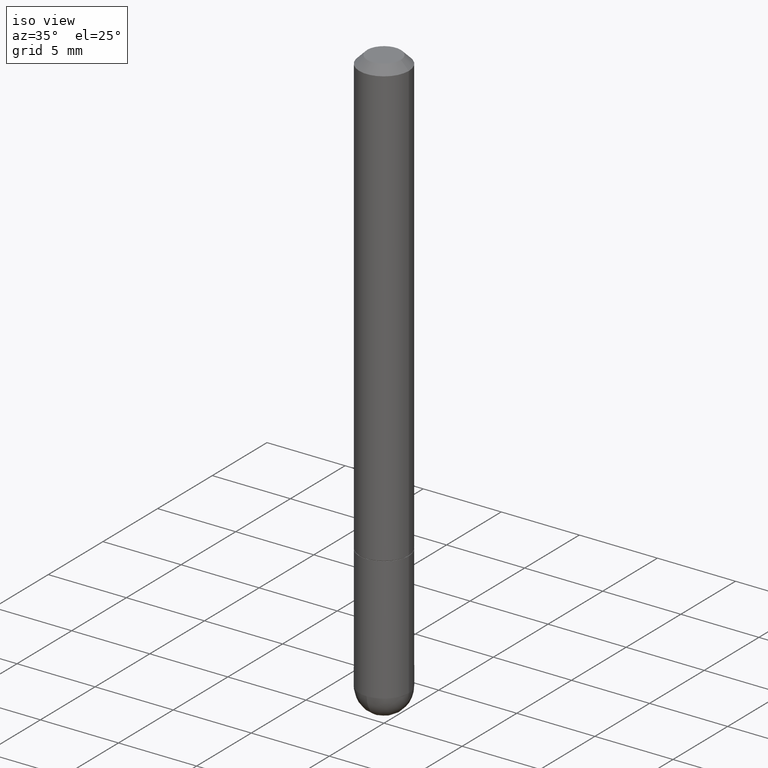
[diagram: clean part render]
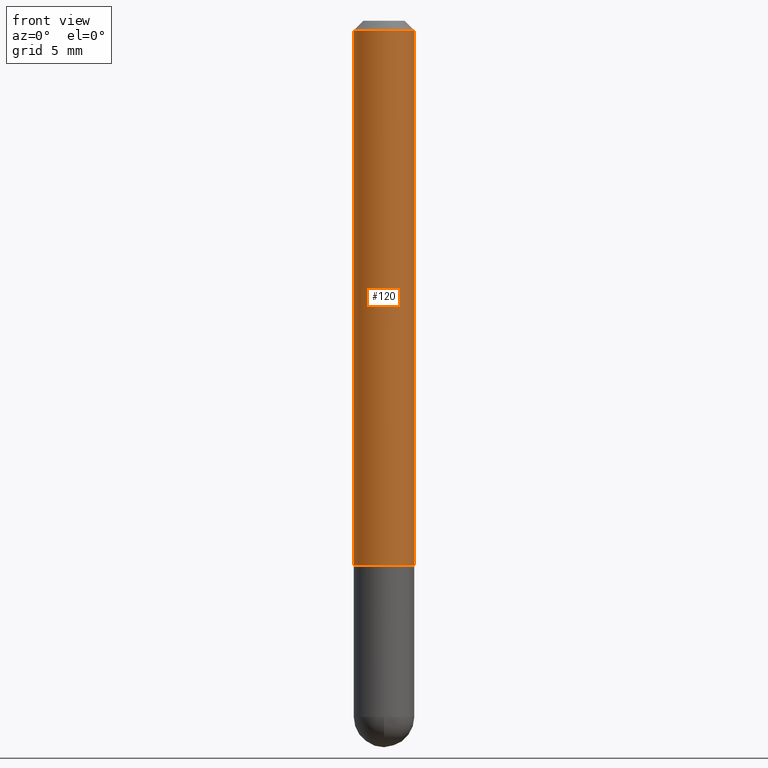
[diagram: tour spotlight — one face highlighted and labeled with its STEP entity id]
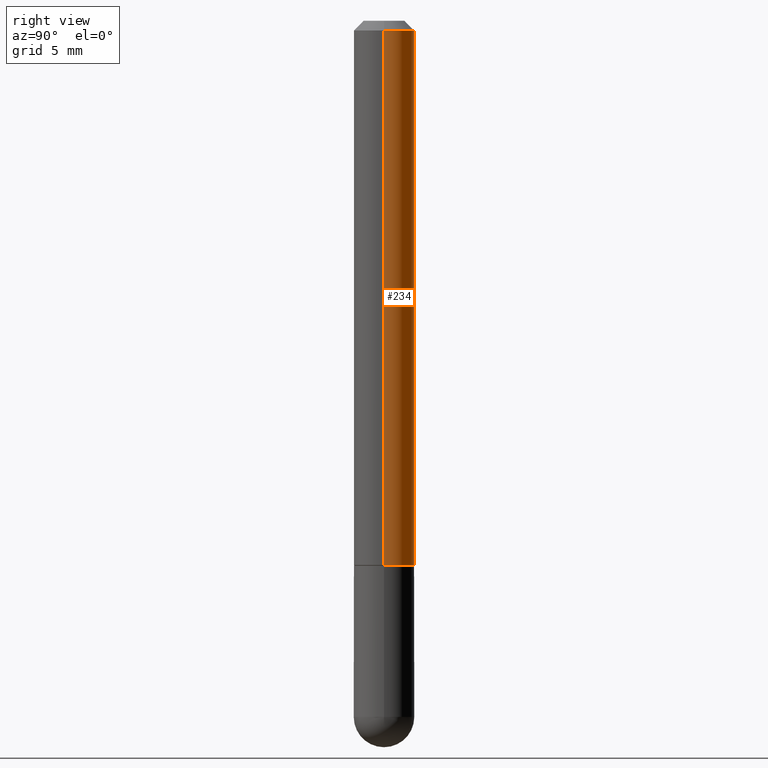
[diagram: tour spotlight — one face highlighted and labeled with its STEP entity id]
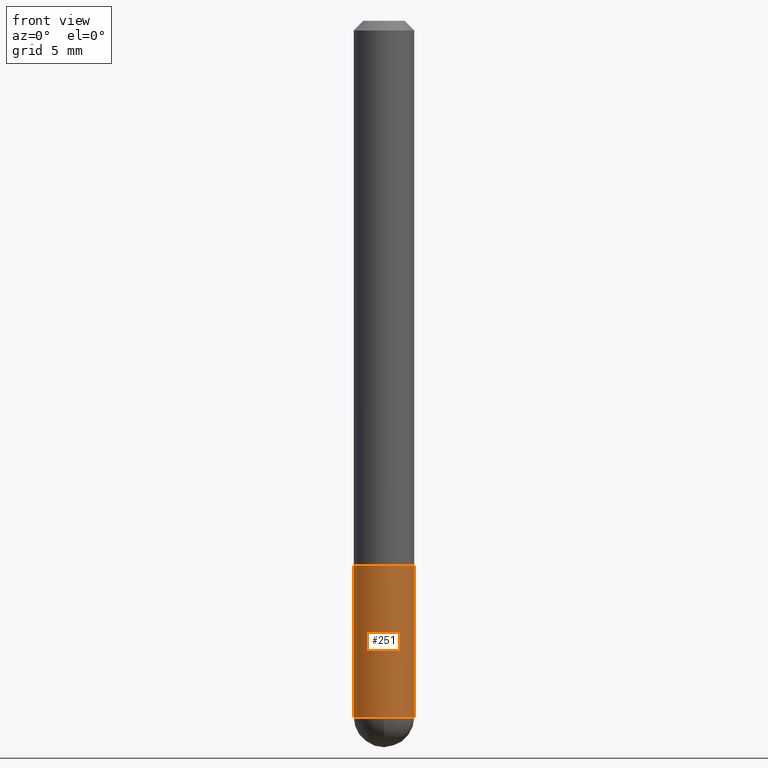
[diagram: tour spotlight — one face highlighted and labeled with its STEP entity id]
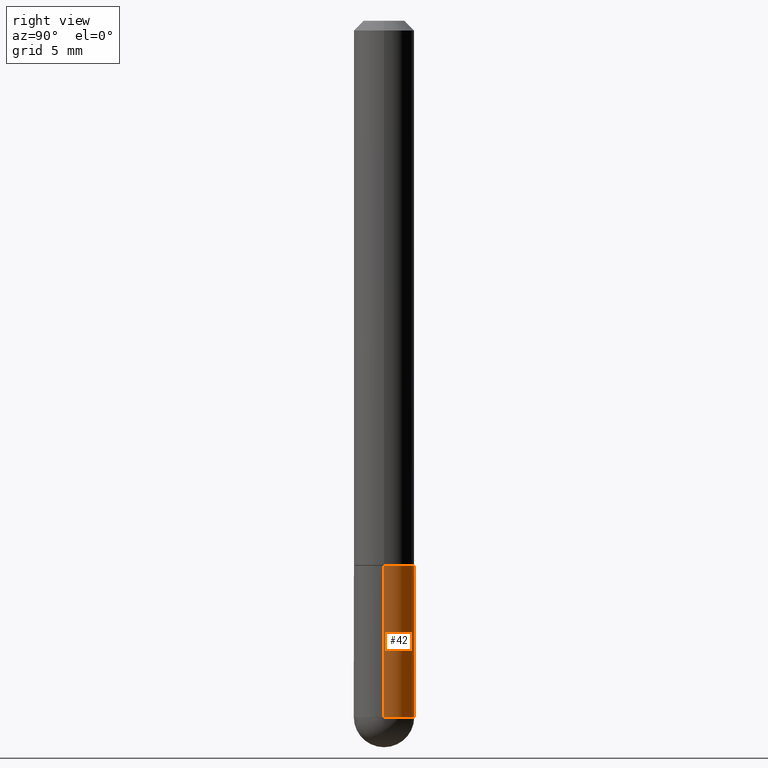
[diagram: tour spotlight — one face highlighted and labeled with its STEP entity id]
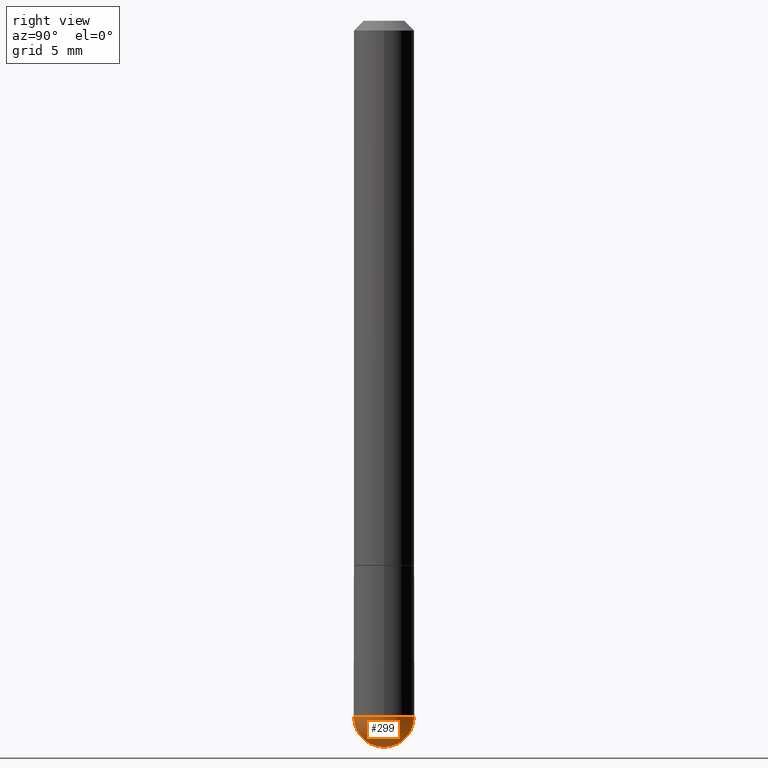
[diagram: tour spotlight — one face highlighted and labeled with its STEP entity id]
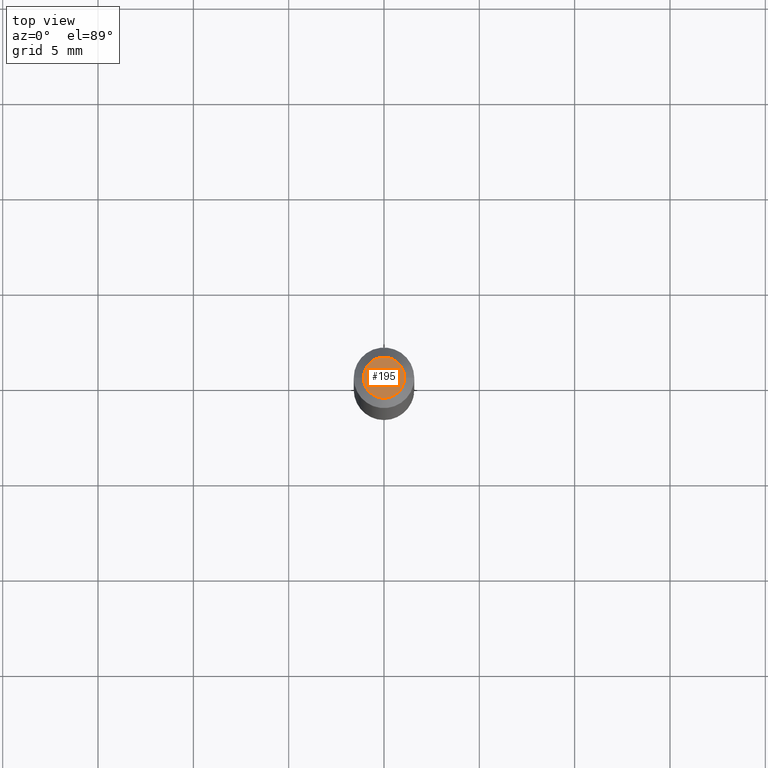
[diagram: tour spotlight — one face highlighted and labeled with its STEP entity id]
A machine part: a face-by-face anatomy tour. The part has 13 B-rep faces; the first image is the clean iso view, then the 6 largest visible faces are spotlighted one at a time (largest first), each with its STEP entity span.

Face 1 — front view, entity #120. In plain terms, the highlighted cylindrical surface (edge-blend (fillet) strip) has radius 1.5875 mm, axis along (-0, 0, 1).
Definition (entity closure, byte-faithful):
#12 = DIRECTION ( 'NONE',  ( -2.445468806185136877E-29, 3.491481338843145188E-15, 1.000000000000000000 ) ) ;
#26 = CARTESIAN_POINT ( 'NONE',  ( 0.06250000000000001388, -4.986107516375840208E-16, -0.02000000000000006981 ) ) ;
#31 = VERTEX_POINT ( 'NONE', #274 ) ;
#45 = CARTESIAN_POINT ( 'NONE',  ( 0.000000000000000000, 0.000000000000000000, 0.000000000000000000 ) ) ;
#47 = EDGE_CURVE ( 'NONE', #101, #275, #158, .T. ) ;
#80 = CARTESIAN_POINT ( 'NONE',  ( 4.890937612370289799E-31, -6.982962677686315028E-17, -0.02000000000000006981 ) ) ;
#92 = DIRECTION ( 'NONE',  ( 1.000000000000000000, -6.982962677686269077E-15, 0.000000000000000000 ) ) ;
#96 = ORIENTED_EDGE ( 'NONE', *, *, #208, .F. ) ;
#101 = VERTEX_POINT ( 'NONE', #238 ) ;
#115 = DIRECTION ( 'NONE',  ( -2.445468806185136597E-29, 3.491481338843145583E-15, 1.000000000000000000 ) ) ;
#120 = ADVANCED_FACE ( 'NONE', ( #272 ), #398, .T. ) ;
#126 = AXIS2_PLACEMENT_3D ( 'NONE', #252, #309, #92 ) ;
#140 = VERTEX_POINT ( 'NONE', #190 ) ;
#147 = EDGE_CURVE ( 'NONE', #140, #31, #194, .T. ) ;
#154 = AXIS2_PLACEMENT_3D ( 'NONE', #45, #115, #332 ) ;
#158 = CIRCLE ( 'NONE', #303, 0.06250000000000001388 ) ;
#159 = VECTOR ( 'NONE', #235, 39.37007874015748143 ) ;
#190 = CARTESIAN_POINT ( 'NONE',  ( -0.06250000000000015266, -1.553038115968214380E-15, -1.124000000000000332 ) ) ;
#194 = CIRCLE ( 'NONE', #126, 0.06250000000000015266 ) ;
#203 = ORIENTED_EDGE ( 'NONE', *, *, #393, .T. ) ;
#208 = EDGE_CURVE ( 'NONE', #140, #101, #287, .T. ) ;
#230 = CARTESIAN_POINT ( 'NONE',  ( -0.06250000000000008327, 4.440892098500632078E-16, -3.074334431409319967E-30 ) ) ;
#235 = DIRECTION ( 'NONE',  ( -2.445468806185136877E-29, 3.491481338843145188E-15, 1.000000000000000000 ) ) ;
#238 = CARTESIAN_POINT ( 'NONE',  ( -0.06250000000000001388, 3.666055405785286670E-16, -0.02000000000000006981 ) ) ;
#252 = CARTESIAN_POINT ( 'NONE',  ( 2.748706938152094189E-29, -3.924425024859696217E-15, -1.124000000000000332 ) ) ;
#265 = ORIENTED_EDGE ( 'NONE', *, *, #47, .F. ) ;
#272 = FACE_OUTER_BOUND ( 'NONE', #349, .T. ) ;
#274 = CARTESIAN_POINT ( 'NONE',  ( 0.06250000000000015266, -4.360860192215089464E-15, -1.124000000000000332 ) ) ;
#275 = VERTEX_POINT ( 'NONE', #26 ) ;
#287 = LINE ( 'NONE', #230, #159 ) ;
#295 = CARTESIAN_POINT ( 'NONE',  ( 0.06250000000000008327, -4.364351673553922611E-16, 3.047610484872464074E-30 ) ) ;
#303 = AXIS2_PLACEMENT_3D ( 'NONE', #80, #403, #359 ) ;
#308 = VECTOR ( 'NONE', #12, 39.37007874015748143 ) ;
#309 = DIRECTION ( 'NONE',  ( -2.445468806185136597E-29, 3.491481338843145583E-15, 1.000000000000000000 ) ) ;
#332 = DIRECTION ( 'NONE',  ( 1.000000000000000000, -6.982962677686266711E-15, 4.876176775795935793E-29 ) ) ;
#348 = LINE ( 'NONE', #295, #308 ) ;
#349 = EDGE_LOOP ( 'NONE', ( #96, #354, #203, #265 ) ) ;
#354 = ORIENTED_EDGE ( 'NONE', *, *, #147, .T. ) ;
#359 = DIRECTION ( 'NONE',  ( 1.000000000000000000, -6.982962677686267499E-15, 0.000000000000000000 ) ) ;
#393 = EDGE_CURVE ( 'NONE', #31, #275, #348, .T. ) ;
#398 = CYLINDRICAL_SURFACE ( 'NONE', #154, 0.06250000000000008327 ) ;
#403 = DIRECTION ( 'NONE',  ( -2.445468806185136597E-29, 3.491481338843145583E-15, 1.000000000000000000 ) ) ;

Face 2 — right view, entity #234. In plain terms, the highlighted cylindrical surface (edge-blend (fillet) strip) has radius 1.5875 mm, axis along (-0, 0, 1).
Definition (entity closure, byte-faithful):
#12 = DIRECTION ( 'NONE',  ( -2.445468806185136877E-29, 3.491481338843145188E-15, 1.000000000000000000 ) ) ;
#13 = DIRECTION ( 'NONE',  ( 1.000000000000000000, -6.982962677686266711E-15, 4.876176775795935793E-29 ) ) ;
#26 = CARTESIAN_POINT ( 'NONE',  ( 0.06250000000000001388, -4.986107516375840208E-16, -0.02000000000000006981 ) ) ;
#31 = VERTEX_POINT ( 'NONE', #274 ) ;
#33 = ORIENTED_EDGE ( 'NONE', *, *, #291, .T. ) ;
#36 = FACE_OUTER_BOUND ( 'NONE', #112, .T. ) ;
#49 = CIRCLE ( 'NONE', #323, 0.06250000000000015266 ) ;
#62 = ORIENTED_EDGE ( 'NONE', *, *, #208, .T. ) ;
#101 = VERTEX_POINT ( 'NONE', #238 ) ;
#107 = CYLINDRICAL_SURFACE ( 'NONE', #244, 0.06250000000000008327 ) ;
#112 = EDGE_LOOP ( 'NONE', ( #33, #62, #130, #286 ) ) ;
#127 = EDGE_CURVE ( 'NONE', #275, #101, #179, .T. ) ;
#130 = ORIENTED_EDGE ( 'NONE', *, *, #127, .F. ) ;
#140 = VERTEX_POINT ( 'NONE', #190 ) ;
#156 = DIRECTION ( 'NONE',  ( 1.000000000000000000, -6.982962677686267499E-15, 0.000000000000000000 ) ) ;
#159 = VECTOR ( 'NONE', #235, 39.37007874015748143 ) ;
#179 = CIRCLE ( 'NONE', #406, 0.06250000000000001388 ) ;
#186 = DIRECTION ( 'NONE',  ( -2.445468806185136597E-29, 3.491481338843145583E-15, 1.000000000000000000 ) ) ;
#190 = CARTESIAN_POINT ( 'NONE',  ( -0.06250000000000015266, -1.553038115968214380E-15, -1.124000000000000332 ) ) ;
#208 = EDGE_CURVE ( 'NONE', #140, #101, #287, .T. ) ;
#230 = CARTESIAN_POINT ( 'NONE',  ( -0.06250000000000008327, 4.440892098500632078E-16, -3.074334431409319967E-30 ) ) ;
#234 = ADVANCED_FACE ( 'NONE', ( #36 ), #107, .T. ) ;
#235 = DIRECTION ( 'NONE',  ( -2.445468806185136877E-29, 3.491481338843145188E-15, 1.000000000000000000 ) ) ;
#238 = CARTESIAN_POINT ( 'NONE',  ( -0.06250000000000001388, 3.666055405785286670E-16, -0.02000000000000006981 ) ) ;
#244 = AXIS2_PLACEMENT_3D ( 'NONE', #310, #389, #13 ) ;
#274 = CARTESIAN_POINT ( 'NONE',  ( 0.06250000000000015266, -4.360860192215089464E-15, -1.124000000000000332 ) ) ;
#275 = VERTEX_POINT ( 'NONE', #26 ) ;
#286 = ORIENTED_EDGE ( 'NONE', *, *, #393, .F. ) ;
#287 = LINE ( 'NONE', #230, #159 ) ;
#291 = EDGE_CURVE ( 'NONE', #31, #140, #49, .T. ) ;
#295 = CARTESIAN_POINT ( 'NONE',  ( 0.06250000000000008327, -4.364351673553922611E-16, 3.047610484872464074E-30 ) ) ;
#308 = VECTOR ( 'NONE', #12, 39.37007874015748143 ) ;
#310 = CARTESIAN_POINT ( 'NONE',  ( 0.000000000000000000, 0.000000000000000000, 0.000000000000000000 ) ) ;
#313 = DIRECTION ( 'NONE',  ( -2.445468806185136597E-29, 3.491481338843145583E-15, 1.000000000000000000 ) ) ;
#323 = AXIS2_PLACEMENT_3D ( 'NONE', #372, #313, #408 ) ;
#348 = LINE ( 'NONE', #295, #308 ) ;
#372 = CARTESIAN_POINT ( 'NONE',  ( 2.748706938152094189E-29, -3.924425024859696217E-15, -1.124000000000000332 ) ) ;
#375 = CARTESIAN_POINT ( 'NONE',  ( 4.890937612370289799E-31, -6.982962677686315028E-17, -0.02000000000000006981 ) ) ;
#389 = DIRECTION ( 'NONE',  ( -2.445468806185136597E-29, 3.491481338843145583E-15, 1.000000000000000000 ) ) ;
#393 = EDGE_CURVE ( 'NONE', #31, #275, #348, .T. ) ;
#406 = AXIS2_PLACEMENT_3D ( 'NONE', #375, #186, #156 ) ;
#408 = DIRECTION ( 'NONE',  ( 1.000000000000000000, -6.982962677686269077E-15, 0.000000000000000000 ) ) ;

Face 3 — front view, entity #251. In plain terms, the highlighted cylindrical surface (edge-blend (fillet) strip) has radius 1.5875 mm, axis along (-0, 0, 1).
Definition (entity closure, byte-faithful):
#10 = CARTESIAN_POINT ( 'NONE',  ( 0.000000000000000000, 0.000000000000000000, 0.000000000000000000 ) ) ;
#16 = DIRECTION ( 'NONE',  ( -2.445468806185136597E-29, 3.491481338843145583E-15, 1.000000000000000000 ) ) ;
#25 = DIRECTION ( 'NONE',  ( -2.445468806185136877E-29, 3.491481338843145188E-15, 1.000000000000000000 ) ) ;
#27 = LINE ( 'NONE', #264, #278 ) ;
#29 = AXIS2_PLACEMENT_3D ( 'NONE', #50, #404, #90 ) ;
#37 = AXIS2_PLACEMENT_3D ( 'NONE', #10, #139, #383 ) ;
#39 = AXIS2_PLACEMENT_3D ( 'NONE', #296, #16, #412 ) ;
#48 = VECTOR ( 'NONE', #25, 39.37007874015748143 ) ;
#50 = CARTESIAN_POINT ( 'NONE',  ( 3.515361408891134418E-29, -5.019004424587023131E-15, -1.437500000000000222 ) ) ;
#65 = FACE_OUTER_BOUND ( 'NONE', #222, .T. ) ;
#69 = ORIENTED_EDGE ( 'NONE', *, *, #181, .T. ) ;
#72 = CARTESIAN_POINT ( 'NONE',  ( 0.06250000000000000000, -4.909895632748173241E-15, -1.437500000000000222 ) ) ;
#74 = VERTEX_POINT ( 'NONE', #138 ) ;
#90 = DIRECTION ( 'NONE',  ( 1.000000000000000000, -6.982962677686262766E-15, 0.000000000000000000 ) ) ;
#102 = EDGE_CURVE ( 'NONE', #259, #352, #268, .T. ) ;
#121 = CIRCLE ( 'NONE', #29, 0.06250000000000000000 ) ;
#123 = LINE ( 'NONE', #250, #48 ) ;
#125 = EDGE_CURVE ( 'NONE', #74, #361, #121, .T. ) ;
#138 = CARTESIAN_POINT ( 'NONE',  ( -0.06250000000000000000, -4.029371255542718167E-15, -1.437500000000000222 ) ) ;
#139 = DIRECTION ( 'NONE',  ( -2.445468806185136597E-29, 3.491481338843145583E-15, 1.000000000000000000 ) ) ;
#153 = CARTESIAN_POINT ( 'NONE',  ( 0.06250000000000000000, -4.364351673553930894E-15, -1.125000000000000222 ) ) ;
#164 = EDGE_CURVE ( 'NONE', #74, #259, #123, .T. ) ;
#171 = CIRCLE ( 'NONE', #39, 0.06250000000000000000 ) ;
#176 = CARTESIAN_POINT ( 'NONE',  ( 2.751152406958279232E-29, -3.927916506198539224E-15, -1.125000000000000222 ) ) ;
#181 = EDGE_CURVE ( 'NONE', #240, #352, #27, .T. ) ;
#210 = AXIS2_PLACEMENT_3D ( 'NONE', #176, #270, #330 ) ;
#217 = CARTESIAN_POINT ( 'NONE',  ( -4.440892098500297305E-16, -0.06250000000000535683, -1.437500000000000000 ) ) ;
#222 = EDGE_LOOP ( 'NONE', ( #257, #236, #289, #69, #316 ) ) ;
#233 = CYLINDRICAL_SURFACE ( 'NONE', #37, 0.06250000000000000000 ) ;
#236 = ORIENTED_EDGE ( 'NONE', *, *, #125, .T. ) ;
#240 = VERTEX_POINT ( 'NONE', #72 ) ;
#250 = CARTESIAN_POINT ( 'NONE',  ( -0.06250000000000000000, 4.440892098500626162E-16, -3.074334431409316114E-30 ) ) ;
#251 = ADVANCED_FACE ( 'NONE', ( #65 ), #233, .T. ) ;
#257 = ORIENTED_EDGE ( 'NONE', *, *, #164, .F. ) ;
#259 = VERTEX_POINT ( 'NONE', #360 ) ;
#264 = CARTESIAN_POINT ( 'NONE',  ( 0.06250000000000000000, -4.364351673553916694E-16, 3.047610484872459871E-30 ) ) ;
#268 = CIRCLE ( 'NONE', #210, 0.06250000000000000000 ) ;
#270 = DIRECTION ( 'NONE',  ( -2.445468806185136597E-29, 3.491481338843145583E-15, 1.000000000000000000 ) ) ;
#271 = EDGE_CURVE ( 'NONE', #361, #240, #171, .T. ) ;
#278 = VECTOR ( 'NONE', #355, 39.37007874015748143 ) ;
#289 = ORIENTED_EDGE ( 'NONE', *, *, #271, .T. ) ;
#296 = CARTESIAN_POINT ( 'NONE',  ( 3.515361408891134418E-29, -5.019004424587023131E-15, -1.437500000000000222 ) ) ;
#316 = ORIENTED_EDGE ( 'NONE', *, *, #102, .F. ) ;
#330 = DIRECTION ( 'NONE',  ( 1.000000000000000000, -6.982962677686262766E-15, 0.000000000000000000 ) ) ;
#352 = VERTEX_POINT ( 'NONE', #153 ) ;
#355 = DIRECTION ( 'NONE',  ( -2.445468806185136877E-29, 3.491481338843145188E-15, 1.000000000000000000 ) ) ;
#360 = CARTESIAN_POINT ( 'NONE',  ( -0.06250000000000000000, -4.029371255542718167E-15, -1.125000000000000222 ) ) ;
#361 = VERTEX_POINT ( 'NONE', #217 ) ;
#383 = DIRECTION ( 'NONE',  ( 1.000000000000000000, -6.982962677686266711E-15, 4.876176775795935793E-29 ) ) ;
#404 = DIRECTION ( 'NONE',  ( -2.445468806185136597E-29, 3.491481338843145583E-15, 1.000000000000000000 ) ) ;
#412 = DIRECTION ( 'NONE',  ( 1.000000000000000000, -6.982962677686262766E-15, 0.000000000000000000 ) ) ;

Face 4 — right view, entity #42. In plain terms, the highlighted cylindrical surface (edge-blend (fillet) strip) has radius 1.5875 mm, axis along (-0, 0, 1).
Definition (entity closure, byte-faithful):
#21 = DIRECTION ( 'NONE',  ( -2.445468806185136597E-29, 3.491481338843145583E-15, 1.000000000000000000 ) ) ;
#24 = EDGE_CURVE ( 'NONE', #232, #74, #117, .T. ) ;
#25 = DIRECTION ( 'NONE',  ( -2.445468806185136877E-29, 3.491481338843145188E-15, 1.000000000000000000 ) ) ;
#27 = LINE ( 'NONE', #264, #278 ) ;
#42 = ADVANCED_FACE ( 'NONE', ( #243 ), #146, .T. ) ;
#48 = VECTOR ( 'NONE', #25, 39.37007874015748143 ) ;
#60 = AXIS2_PLACEMENT_3D ( 'NONE', #78, #82, #362 ) ;
#67 = EDGE_CURVE ( 'NONE', #240, #232, #143, .T. ) ;
#72 = CARTESIAN_POINT ( 'NONE',  ( 0.06250000000000000000, -4.909895632748173241E-15, -1.437500000000000222 ) ) ;
#74 = VERTEX_POINT ( 'NONE', #138 ) ;
#75 = DIRECTION ( 'NONE',  ( 1.000000000000000000, -6.982962677686262766E-15, 0.000000000000000000 ) ) ;
#76 = EDGE_CURVE ( 'NONE', #352, #259, #237, .T. ) ;
#78 = CARTESIAN_POINT ( 'NONE',  ( 3.515361408891134418E-29, -5.019004424587023131E-15, -1.437500000000000222 ) ) ;
#82 = DIRECTION ( 'NONE',  ( -2.445468806185136597E-29, 3.491481338843145583E-15, 1.000000000000000000 ) ) ;
#111 = AXIS2_PLACEMENT_3D ( 'NONE', #394, #335, #300 ) ;
#117 = CIRCLE ( 'NONE', #328, 0.06250000000000000000 ) ;
#123 = LINE ( 'NONE', #250, #48 ) ;
#135 = ORIENTED_EDGE ( 'NONE', *, *, #24, .T. ) ;
#138 = CARTESIAN_POINT ( 'NONE',  ( -0.06250000000000000000, -4.029371255542718167E-15, -1.437500000000000222 ) ) ;
#143 = CIRCLE ( 'NONE', #60, 0.06250000000000000000 ) ;
#146 = CYLINDRICAL_SURFACE ( 'NONE', #202, 0.06250000000000000000 ) ;
#149 = CARTESIAN_POINT ( 'NONE',  ( 3.515361408891134418E-29, -5.019004424587023131E-15, -1.437500000000000222 ) ) ;
#153 = CARTESIAN_POINT ( 'NONE',  ( 0.06250000000000000000, -4.364351673553930894E-15, -1.125000000000000222 ) ) ;
#164 = EDGE_CURVE ( 'NONE', #74, #259, #123, .T. ) ;
#178 = DIRECTION ( 'NONE',  ( -2.445468806185136597E-29, 3.491481338843145583E-15, 1.000000000000000000 ) ) ;
#181 = EDGE_CURVE ( 'NONE', #240, #352, #27, .T. ) ;
#192 = CARTESIAN_POINT ( 'NONE',  ( 4.364351673554258863E-16, 0.06249999999999485134, -1.437500000000000444 ) ) ;
#202 = AXIS2_PLACEMENT_3D ( 'NONE', #367, #178, #206 ) ;
#206 = DIRECTION ( 'NONE',  ( 1.000000000000000000, -6.982962677686266711E-15, 4.876176775795935793E-29 ) ) ;
#232 = VERTEX_POINT ( 'NONE', #192 ) ;
#237 = CIRCLE ( 'NONE', #111, 0.06250000000000000000 ) ;
#240 = VERTEX_POINT ( 'NONE', #72 ) ;
#243 = FACE_OUTER_BOUND ( 'NONE', #391, .T. ) ;
#250 = CARTESIAN_POINT ( 'NONE',  ( -0.06250000000000000000, 4.440892098500626162E-16, -3.074334431409316114E-30 ) ) ;
#259 = VERTEX_POINT ( 'NONE', #360 ) ;
#262 = ORIENTED_EDGE ( 'NONE', *, *, #67, .T. ) ;
#264 = CARTESIAN_POINT ( 'NONE',  ( 0.06250000000000000000, -4.364351673553916694E-16, 3.047610484872459871E-30 ) ) ;
#278 = VECTOR ( 'NONE', #355, 39.37007874015748143 ) ;
#300 = DIRECTION ( 'NONE',  ( 1.000000000000000000, -6.982962677686262766E-15, 0.000000000000000000 ) ) ;
#318 = ORIENTED_EDGE ( 'NONE', *, *, #181, .F. ) ;
#328 = AXIS2_PLACEMENT_3D ( 'NONE', #149, #21, #75 ) ;
#331 = ORIENTED_EDGE ( 'NONE', *, *, #76, .F. ) ;
#335 = DIRECTION ( 'NONE',  ( -2.445468806185136597E-29, 3.491481338843145583E-15, 1.000000000000000000 ) ) ;
#352 = VERTEX_POINT ( 'NONE', #153 ) ;
#355 = DIRECTION ( 'NONE',  ( -2.445468806185136877E-29, 3.491481338843145188E-15, 1.000000000000000000 ) ) ;
#360 = CARTESIAN_POINT ( 'NONE',  ( -0.06250000000000000000, -4.029371255542718167E-15, -1.125000000000000222 ) ) ;
#362 = DIRECTION ( 'NONE',  ( 1.000000000000000000, -6.982962677686262766E-15, 0.000000000000000000 ) ) ;
#367 = CARTESIAN_POINT ( 'NONE',  ( 0.000000000000000000, 0.000000000000000000, 0.000000000000000000 ) ) ;
#391 = EDGE_LOOP ( 'NONE', ( #135, #395, #331, #318, #262 ) ) ;
#394 = CARTESIAN_POINT ( 'NONE',  ( 2.751152406958279232E-29, -3.927916506198539224E-15, -1.125000000000000222 ) ) ;
#395 = ORIENTED_EDGE ( 'NONE', *, *, #164, .T. ) ;

Face 5 — right view, entity #299. In plain terms, the highlighted spherical surface has radius 1.5875 mm.
Definition (entity closure, byte-faithful):
#1 = CIRCLE ( 'NONE', #253, 0.06250000000000020817 ) ;
#8 = ORIENTED_EDGE ( 'NONE', *, *, #271, .F. ) ;
#16 = DIRECTION ( 'NONE',  ( -2.445468806185136597E-29, 3.491481338843145583E-15, 1.000000000000000000 ) ) ;
#20 = EDGE_CURVE ( 'NONE', #198, #361, #22, .T. ) ;
#22 = CIRCLE ( 'NONE', #292, 0.06250000000000020817 ) ;
#39 = AXIS2_PLACEMENT_3D ( 'NONE', #296, #16, #412 ) ;
#46 = DIRECTION ( 'NONE',  ( 1.000000000000000000, -6.982962677686265922E-15, 4.883557194083112340E-29 ) ) ;
#60 = AXIS2_PLACEMENT_3D ( 'NONE', #78, #82, #362 ) ;
#67 = EDGE_CURVE ( 'NONE', #240, #232, #143, .T. ) ;
#72 = CARTESIAN_POINT ( 'NONE',  ( 0.06250000000000000000, -4.909895632748173241E-15, -1.437500000000000222 ) ) ;
#78 = CARTESIAN_POINT ( 'NONE',  ( 3.515361408891134418E-29, -5.019004424587023131E-15, -1.437500000000000222 ) ) ;
#82 = DIRECTION ( 'NONE',  ( -2.445468806185136597E-29, 3.491481338843145583E-15, 1.000000000000000000 ) ) ;
#87 = EDGE_CURVE ( 'NONE', #198, #232, #1, .T. ) ;
#104 = ORIENTED_EDGE ( 'NONE', *, *, #20, .F. ) ;
#110 = DIRECTION ( 'NONE',  ( 6.982962677686267499E-15, 1.000000000000000000, 0.000000000000000000 ) ) ;
#128 = SPHERICAL_SURFACE ( 'NONE', #183, 0.06250000000000020817 ) ;
#143 = CIRCLE ( 'NONE', #60, 0.06250000000000000000 ) ;
#171 = CIRCLE ( 'NONE', #39, 0.06250000000000000000 ) ;
#183 = AXIS2_PLACEMENT_3D ( 'NONE', #254, #221, #374 ) ;
#192 = CARTESIAN_POINT ( 'NONE',  ( 4.364351673554258863E-16, 0.06249999999999485134, -1.437500000000000444 ) ) ;
#198 = VERTEX_POINT ( 'NONE', #350 ) ;
#209 = CARTESIAN_POINT ( 'NONE',  ( 3.184241630977248732E-29, -5.493186792727072638E-15, -1.437500000000000222 ) ) ;
#217 = CARTESIAN_POINT ( 'NONE',  ( -4.440892098500297305E-16, -0.06250000000000535683, -1.437500000000000000 ) ) ;
#221 = DIRECTION ( 'NONE',  ( -1.000000000000000000, 6.982962677686266711E-15, -4.883557194083112901E-29 ) ) ;
#232 = VERTEX_POINT ( 'NONE', #192 ) ;
#240 = VERTEX_POINT ( 'NONE', #72 ) ;
#245 = ORIENTED_EDGE ( 'NONE', *, *, #87, .T. ) ;
#253 = AXIS2_PLACEMENT_3D ( 'NONE', #209, #46, #110 ) ;
#254 = CARTESIAN_POINT ( 'NONE',  ( 3.184241630977248732E-29, -5.493186792727072638E-15, -1.437500000000000222 ) ) ;
#271 = EDGE_CURVE ( 'NONE', #361, #240, #171, .T. ) ;
#277 = FACE_OUTER_BOUND ( 'NONE', #345, .T. ) ;
#292 = AXIS2_PLACEMENT_3D ( 'NONE', #320, #302, #370 ) ;
#296 = CARTESIAN_POINT ( 'NONE',  ( 3.515361408891134418E-29, -5.019004424587023131E-15, -1.437500000000000222 ) ) ;
#299 = ADVANCED_FACE ( 'NONE', ( #277 ), #128, .T. ) ;
#302 = DIRECTION ( 'NONE',  ( -1.000000000000000000, 7.105427357601001070E-15, -4.926315508542082329E-29 ) ) ;
#320 = CARTESIAN_POINT ( 'NONE',  ( 3.184241630977248732E-29, -5.493186792727072638E-15, -1.437500000000000222 ) ) ;
#343 = ORIENTED_EDGE ( 'NONE', *, *, #67, .F. ) ;
#345 = EDGE_LOOP ( 'NONE', ( #104, #245, #343, #8 ) ) ;
#350 = CARTESIAN_POINT ( 'NONE',  ( 3.339755826017505569E-29, -5.707577355157435366E-15, -1.500000000000000444 ) ) ;
#361 = VERTEX_POINT ( 'NONE', #217 ) ;
#362 = DIRECTION ( 'NONE',  ( 1.000000000000000000, -6.982962677686262766E-15, 0.000000000000000000 ) ) ;
#370 = DIRECTION ( 'NONE',  ( -7.105427357601001859E-15, -1.000000000000000000, 0.000000000000000000 ) ) ;
#374 = DIRECTION ( 'NONE',  ( 6.982962677686266711E-15, 1.000000000000000000, -4.370956789862806161E-15 ) ) ;
#412 = DIRECTION ( 'NONE',  ( 1.000000000000000000, -6.982962677686262766E-15, 0.000000000000000000 ) ) ;

Face 6 — top view, entity #195. In plain terms, the highlighted planar face has unit normal (0, -0, -1).
Definition (entity closure, byte-faithful):
#11 = EDGE_LOOP ( 'NONE', ( #385, #108 ) ) ;
#54 = EDGE_CURVE ( 'NONE', #97, #168, #188, .T. ) ;
#70 = PLANE ( 'NONE',  #260 ) ;
#94 = CARTESIAN_POINT ( 'NONE',  ( 2.967759138016669466E-16, 0.04250000000000009326, -1.761332880864866905E-16 ) ) ;
#97 = VERTEX_POINT ( 'NONE', #327 ) ;
#98 = DIRECTION ( 'NONE',  ( -2.445468806185136597E-29, 3.491481338843145583E-15, 1.000000000000000000 ) ) ;
#108 = ORIENTED_EDGE ( 'NONE', *, *, #191, .T. ) ;
#116 = DIRECTION ( 'NONE',  ( 1.000000000000000000, -6.982962677686265922E-15, 4.870577812114074077E-29 ) ) ;
#157 = CARTESIAN_POINT ( 'NONE',  ( 0.04250000000000009326, -3.950909582714374348E-16, -5.549066237130292766E-17 ) ) ;
#160 = DIRECTION ( 'NONE',  ( 1.000000000000000000, -6.982962677686265922E-15, 4.870577812114074077E-29 ) ) ;
#168 = VERTEX_POINT ( 'NONE', #157 ) ;
#188 = CIRCLE ( 'NONE', #298, 0.04250000000000009326 ) ;
#191 = EDGE_CURVE ( 'NONE', #168, #97, #337, .T. ) ;
#195 = ADVANCED_FACE ( 'NONE', ( #381 ), #70, .F. ) ;
#223 = CARTESIAN_POINT ( 'NONE',  ( 1.357006838635785746E-45, -1.937446121494581442E-31, -5.549066237130534971E-17 ) ) ;
#247 = DIRECTION ( 'NONE',  ( -2.445468806185136597E-29, 3.491481338843145583E-15, 1.000000000000000000 ) ) ;
#260 = AXIS2_PLACEMENT_3D ( 'NONE', #94, #311, #284 ) ;
#284 = DIRECTION ( 'NONE',  ( -1.000000000000000000, 6.982962677686265922E-15, -4.876176775795935793E-29 ) ) ;
#298 = AXIS2_PLACEMENT_3D ( 'NONE', #400, #247, #116 ) ;
#311 = DIRECTION ( 'NONE',  ( 2.438088387897960049E-29, -3.491481338843145188E-15, -1.000000000000000000 ) ) ;
#327 = CARTESIAN_POINT ( 'NONE',  ( -0.04250000000000009326, 3.316907271900977082E-16, -5.549066237130754373E-17 ) ) ;
#337 = CIRCLE ( 'NONE', #396, 0.04250000000000009326 ) ;
#381 = FACE_OUTER_BOUND ( 'NONE', #11, .T. ) ;
#385 = ORIENTED_EDGE ( 'NONE', *, *, #54, .T. ) ;
#396 = AXIS2_PLACEMENT_3D ( 'NONE', #223, #98, #160 ) ;
#400 = CARTESIAN_POINT ( 'NONE',  ( 1.357006838635785746E-45, -1.937446121494581442E-31, -5.549066237130534971E-17 ) ) ;